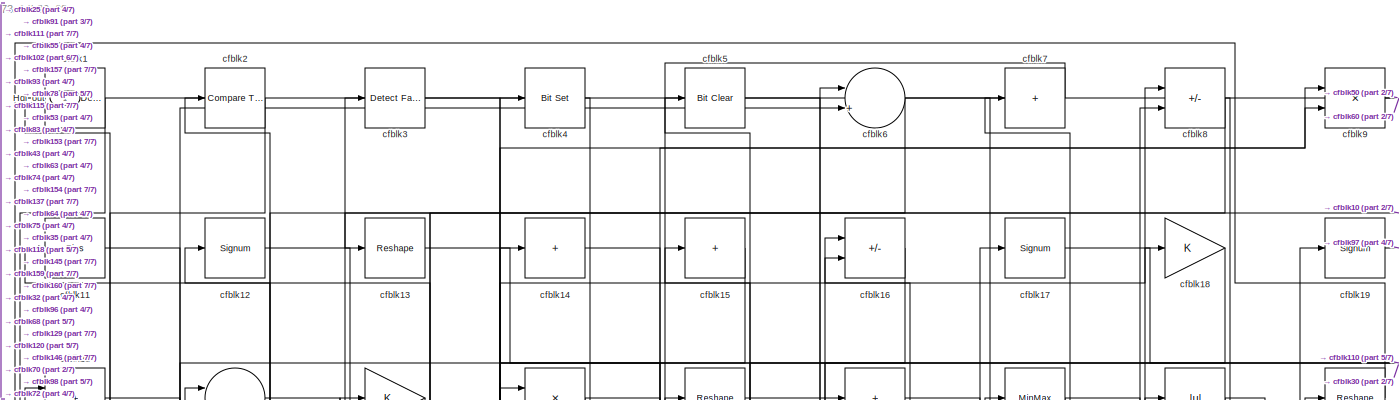
[diagram: root canvas - part 1/7, full width, top band]
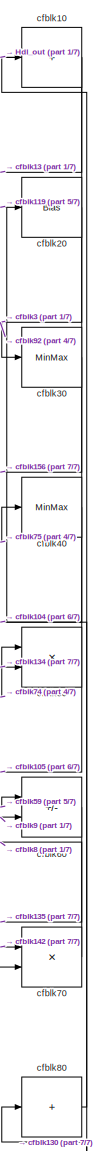
[diagram: root canvas - part 2/7, top right region]
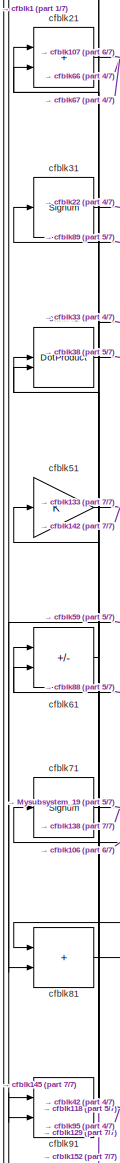
[diagram: root canvas - part 3/7, middle left region]
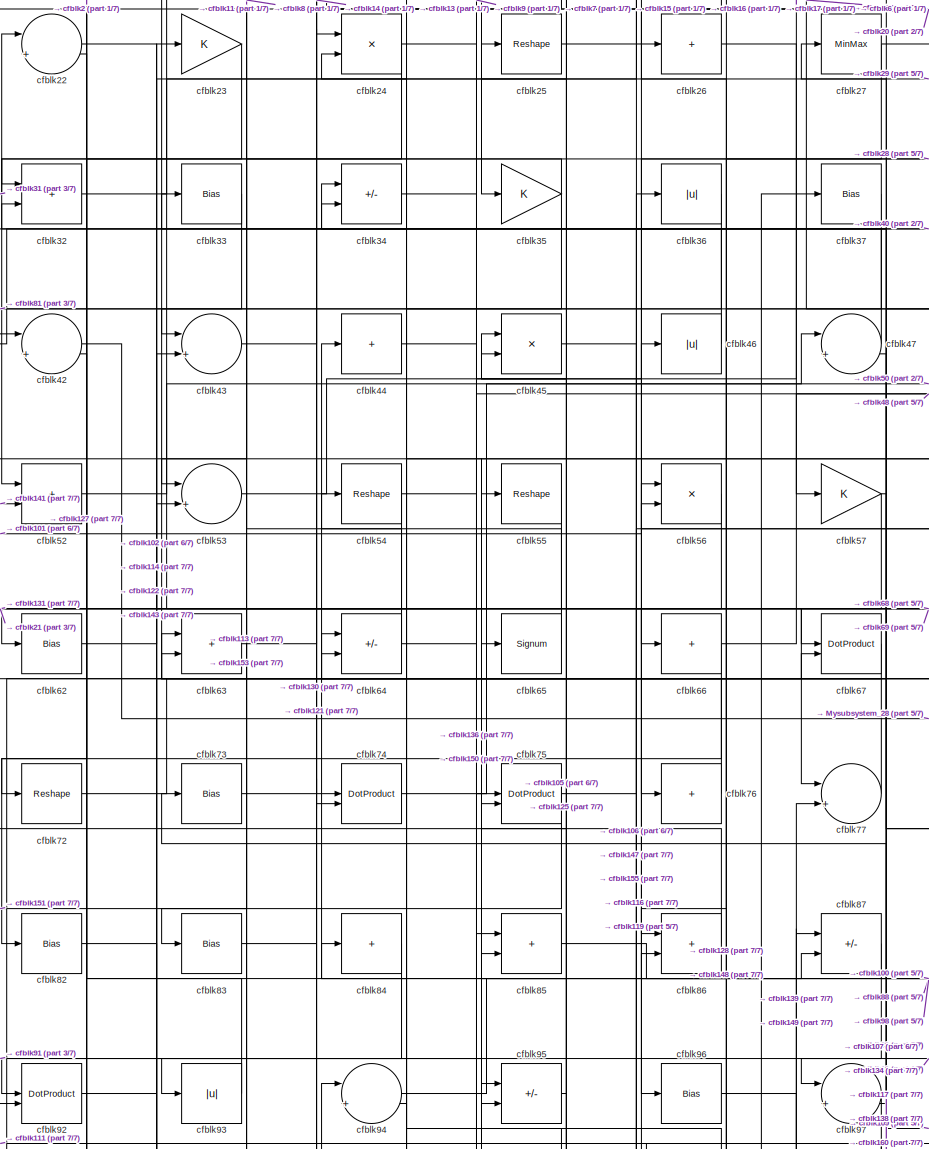
[diagram: root canvas - part 4/7, central region]
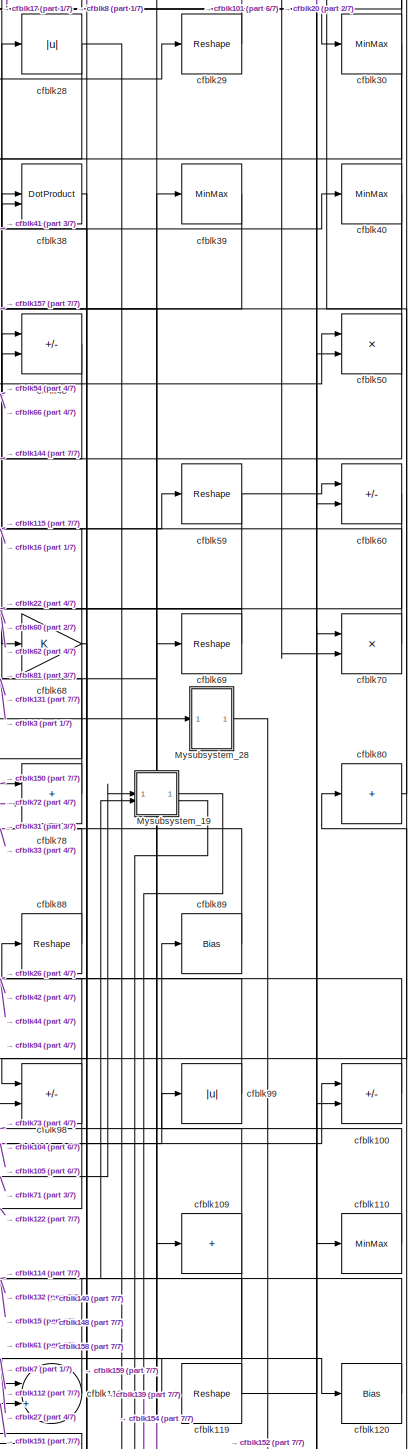
[diagram: root canvas - part 5/7, middle right region]
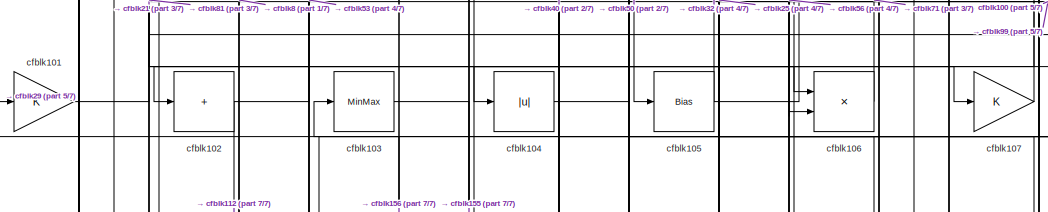
[diagram: root canvas - part 6/7, central region]
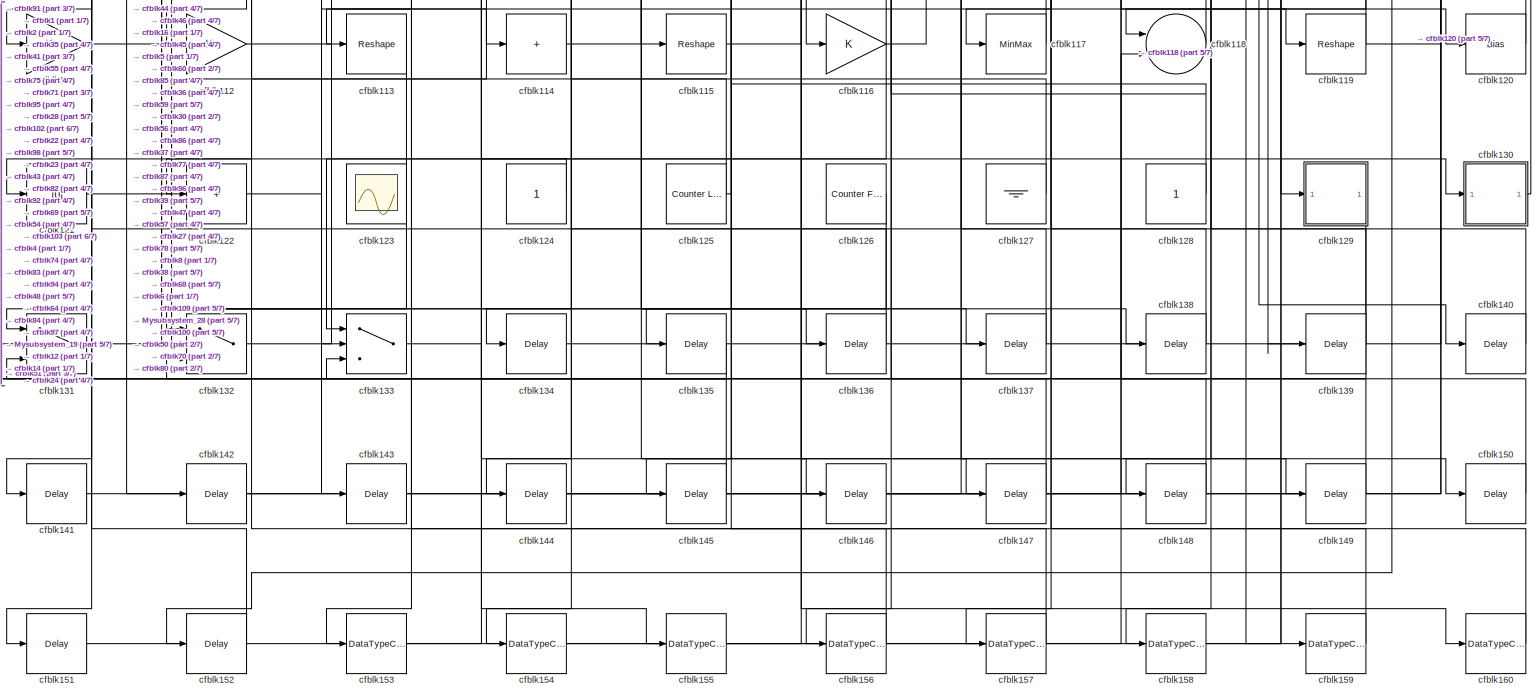
[diagram: root canvas - part 7/7, full width, bottom band]
MODEL slx_873a14b30a68
KIND model
CONFIG AbsTol = auto
CONFIG EnableMultiTasking = off
CONFIG FixedStep = auto
CONFIG MaxStep = auto
CONFIG MinStep = auto
CONFIG RelTol = 1e-3
CONFIG SampleTimeConstraint = Unconstrained
CONFIG SolverName = VariableStepAuto
CONFIG StartTime = 0.0
CONFIG StopTime = 10.0
BLOCK [Outport] Hdl_out
  OutDataTypeStr = uint8
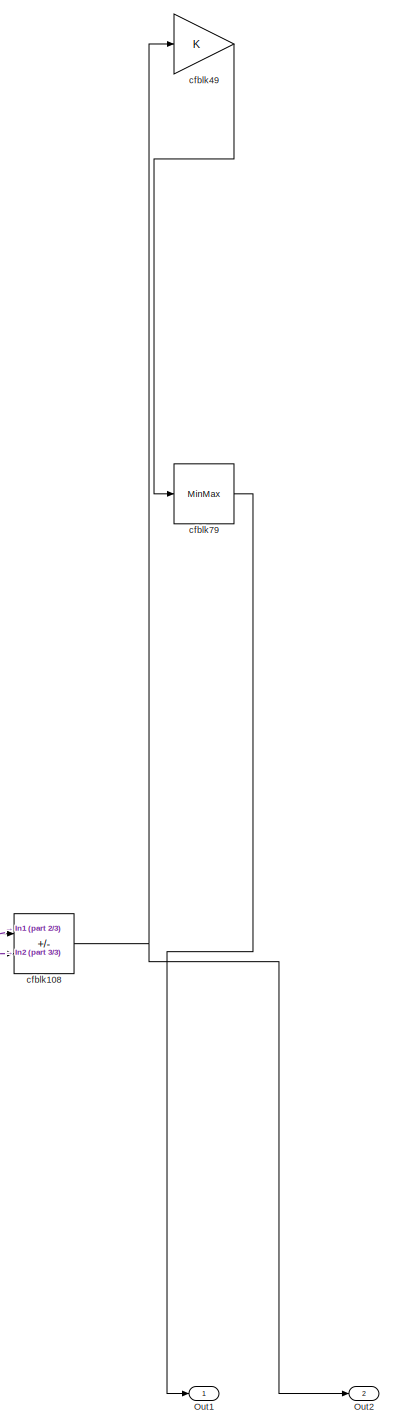
[diagram: Mysubsystem_19 - part 1/3, right side, full height]
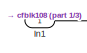
[diagram: Mysubsystem_19 - part 2/3, middle left region]
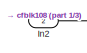
[diagram: Mysubsystem_19 - part 3/3, bottom center region]
BLOCK [SubSystem] Mysubsystem_19
  RTWFcnName = Mysubsystem_19
  RTWFcnNameOpts = User specified
  RTWFileNameOpts = Use function name
  RTWSystemCode = Reusable function
  TreatAsAtomicUnit = on
BLOCK [Inport] Mysubsystem_19/In1
BLOCK [Inport] Mysubsystem_19/In2
  Port = 2
BLOCK [Outport] Mysubsystem_19/Out1
BLOCK [Outport] Mysubsystem_19/Out2
  Port = 2
BLOCK [Sum] Mysubsystem_19/cfblk108
  IconShape = rectangular
  Inputs = +-
BLOCK [Gain] Mysubsystem_19/cfblk49
BLOCK [MinMax] Mysubsystem_19/cfblk79
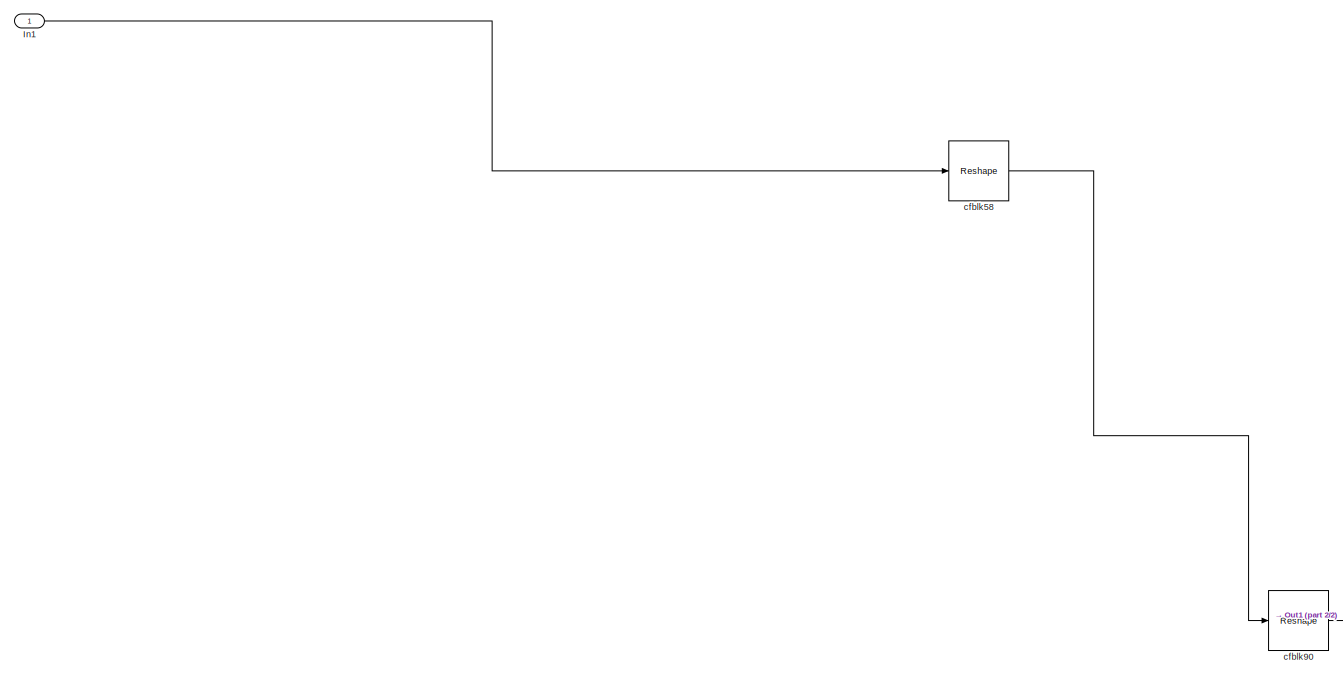
[diagram: Mysubsystem_28 - part 1/2, full width, top band]
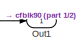
[diagram: Mysubsystem_28 - part 2/2, bottom left region]
BLOCK [SubSystem] Mysubsystem_28
  RTWFcnName = Mysubsystem_28
  RTWFcnNameOpts = User specified
  RTWFileNameOpts = Use function name
  RTWSystemCode = Reusable function
  TreatAsAtomicUnit = on
BLOCK [Inport] Mysubsystem_28/In1
BLOCK [Outport] Mysubsystem_28/Out1
BLOCK [Reshape] Mysubsystem_28/cfblk58
BLOCK [Reshape] Mysubsystem_28/cfblk90
BLOCK [Reference] cfblk1  REF=simulink/Logic and Bit
Operations/Detect
Decrease
  LibrarySourceBlock = hdlsllib/Logic and Bit\nOperations/Detect\nDecrease
  SourceBlock = simulink/Logic and Bit\nOperations/Detect\nDecrease
  SourceType = Detect Decrease
BLOCK [Sum] cfblk10
  IconShape = rectangular
  Inputs = +
  OutDataTypeStr = uint8
BLOCK [Sum] cfblk100
  IconShape = rectangular
  Inputs = +-
  OutDataTypeStr = uint8
BLOCK [Gain] cfblk101
  OutDataTypeStr = uint8
BLOCK [Sum] cfblk102
  IconShape = rectangular
  Inputs = +
  OutDataTypeStr = uint8
BLOCK [MinMax] cfblk103
  OutDataTypeStr = uint8
BLOCK [Abs] cfblk104
  OutDataTypeStr = uint8
  SaturateOnIntegerOverflow = off
BLOCK [Bias] cfblk105
  Bias = 0.0
  SaturateOnIntegerOverflow = off
BLOCK [Product] cfblk106
  Inputs = */
  OutDataTypeStr = uint8
  RndMeth = Zero
  SaturateOnIntegerOverflow = on
BLOCK [Gain] cfblk107
  OutDataTypeStr = uint8
BLOCK [Sum] cfblk109
  IconShape = rectangular
  Inputs = +
  OutDataTypeStr = uint8
BLOCK [Bias] cfblk11
  Bias = 0.0
  SaturateOnIntegerOverflow = off
BLOCK [MinMax] cfblk110
  OutDataTypeStr = uint8
BLOCK [Gain] cfblk111
  OutDataTypeStr = uint8
BLOCK [Gain] cfblk112
  OutDataTypeStr = uint8
BLOCK [Reshape] cfblk113
BLOCK [Sum] cfblk114
  IconShape = rectangular
  Inputs = +
  OutDataTypeStr = uint8
BLOCK [Reshape] cfblk115
BLOCK [Gain] cfblk116
  OutDataTypeStr = uint8
BLOCK [MinMax] cfblk117
  OutDataTypeStr = uint8
BLOCK [Sum] cfblk118
  Inputs = |++
  OutDataTypeStr = uint8
BLOCK [Reshape] cfblk119
BLOCK [Signum] cfblk12
BLOCK [Bias] cfblk120
  Bias = 0.0
  SaturateOnIntegerOverflow = off
BLOCK [Abs] cfblk121
  OutDataTypeStr = uint8
  SaturateOnIntegerOverflow = off
BLOCK [Sum] cfblk122
  IconShape = rectangular
  Inputs = +
  OutDataTypeStr = uint8
BLOCK [Scope] cfblk123
  Floating = on
  NumInputPorts = 1
  ScopeSpecificationString = Simulink.scopes.TimeScopeBlockCfg('CurrentConfiguration', extmgr.ConfigurationSet(extmgr.Configuration('Core','General UI',true,'FigureColor',[0.156862745098039 0.156862745098039 0.156862745098039]),extmgr.Configuration('Core','Source UI',true),extmgr.Configuration('Sources','WiredSimulink',true,'DataLoggingVariableName','ScopeData1','DataLoggingSaveFormat','StructureWithTime','DataLoggingLimitDat...<+2713ch>
BLOCK [Constant] cfblk124
  OutDataTypeStr = uint8
  SampleTime = -1
BLOCK [Reference] cfblk125  REF=hdlsllib/Sources/Counter
Limited
  SourceBlock = hdlsllib/Sources/Counter\nLimited
  SourceType = Counter Limited
BLOCK [Reference] cfblk126  REF=hdlsllib/Sources/Counter
Free-Running
  SourceBlock = hdlsllib/Sources/Counter\nFree-Running
  SourceType = Counter Free-Running
BLOCK [Ground] cfblk127
BLOCK [Constant] cfblk128
  OutDataTypeStr = uint8
  SampleTime = -1
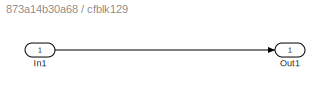
BLOCK [SubSystem] cfblk129
  LibrarySourceBlock = hdlsllib/Ports &\nSubsystems/Subsystem
BLOCK [Inport] cfblk129/In1
BLOCK [Outport] cfblk129/Out1
BLOCK [Reshape] cfblk13
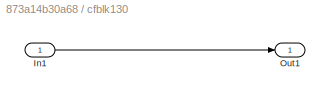
BLOCK [SubSystem] cfblk130
  LibrarySourceBlock = hdlsllib/Ports &\nSubsystems/Subsystem
BLOCK [Inport] cfblk130/In1
BLOCK [Outport] cfblk130/Out1
BLOCK [Switch] cfblk131
  InputSameDT = off
  OutDataTypeStr = uint8
  SaturateOnIntegerOverflow = off
BLOCK [Switch] cfblk132
  InputSameDT = off
  OutDataTypeStr = uint8
  SaturateOnIntegerOverflow = off
BLOCK [Switch] cfblk133
  InputSameDT = off
  OutDataTypeStr = uint8
  SaturateOnIntegerOverflow = off
BLOCK [Delay] cfblk134
  InputPortMap = u0
  SampleTime = 1
BLOCK [Delay] cfblk135
  InputPortMap = u0
  SampleTime = 1
BLOCK [Delay] cfblk136
  InputPortMap = u0
  SampleTime = 1
BLOCK [Delay] cfblk137
  InputPortMap = u0
  SampleTime = 1
BLOCK [Delay] cfblk138
  InputPortMap = u0
  SampleTime = 1
BLOCK [Delay] cfblk139
  InputPortMap = u0
  SampleTime = 1
BLOCK [Sum] cfblk14
  IconShape = rectangular
  Inputs = +
  OutDataTypeStr = uint8
BLOCK [Delay] cfblk140
  InputPortMap = u0
  SampleTime = 1
BLOCK [Delay] cfblk141
  InputPortMap = u0
  SampleTime = 1
BLOCK [Delay] cfblk142
  InputPortMap = u0
  SampleTime = 1
BLOCK [Delay] cfblk143
  InputPortMap = u0
  SampleTime = 1
BLOCK [Delay] cfblk144
  InputPortMap = u0
  SampleTime = 1
BLOCK [Delay] cfblk145
  InputPortMap = u0
  SampleTime = 1
BLOCK [Delay] cfblk146
  InputPortMap = u0
  SampleTime = 1
BLOCK [Delay] cfblk147
  InputPortMap = u0
  SampleTime = 1
BLOCK [Delay] cfblk148
  InputPortMap = u0
  SampleTime = 1
BLOCK [Delay] cfblk149
  InputPortMap = u0
  SampleTime = 1
BLOCK [Sum] cfblk15
  IconShape = rectangular
  Inputs = +
  OutDataTypeStr = uint8
BLOCK [Delay] cfblk150
  InputPortMap = u0
  SampleTime = 1
BLOCK [Delay] cfblk151
  InputPortMap = u0
  SampleTime = 1
BLOCK [Delay] cfblk152
  InputPortMap = u0
  SampleTime = 1
BLOCK [DataTypeConversion] cfblk153
  OutDataTypeStr = uint8
  RndMeth = Floor
  SaturateOnIntegerOverflow = off
BLOCK [DataTypeConversion] cfblk154
  OutDataTypeStr = uint8
  RndMeth = Floor
  SaturateOnIntegerOverflow = off
BLOCK [DataTypeConversion] cfblk155
  OutDataTypeStr = uint8
  RndMeth = Floor
  SaturateOnIntegerOverflow = off
BLOCK [DataTypeConversion] cfblk156
  OutDataTypeStr = uint8
  RndMeth = Floor
  SaturateOnIntegerOverflow = off
BLOCK [DataTypeConversion] cfblk157
  OutDataTypeStr = uint8
  RndMeth = Floor
  SaturateOnIntegerOverflow = off
BLOCK [DataTypeConversion] cfblk158
  OutDataTypeStr = uint8
  RndMeth = Floor
  SaturateOnIntegerOverflow = off
BLOCK [DataTypeConversion] cfblk159
  OutDataTypeStr = uint8
  RndMeth = Floor
  SaturateOnIntegerOverflow = off
BLOCK [Sum] cfblk16
  IconShape = rectangular
  Inputs = +-
  OutDataTypeStr = uint8
BLOCK [DataTypeConversion] cfblk160
  OutDataTypeStr = uint8
  RndMeth = Floor
  SaturateOnIntegerOverflow = off
BLOCK [Signum] cfblk17
BLOCK [Gain] cfblk18
  OutDataTypeStr = uint8
BLOCK [Signum] cfblk19
BLOCK [Reference] cfblk2  REF=hdlsllib/Logic and Bit
Operations/Compare
To Zero
  SourceBlock = hdlsllib/Logic and Bit\nOperations/Compare\nTo Zero
  SourceType = Compare To Zero
BLOCK [Bias] cfblk20
  Bias = 0.0
  SaturateOnIntegerOverflow = off
BLOCK [Sum] cfblk21
  IconShape = rectangular
  OutDataTypeStr = uint8
BLOCK [Sum] cfblk22
  Inputs = |++
  OutDataTypeStr = uint8
BLOCK [Gain] cfblk23
  OutDataTypeStr = uint8
BLOCK [Product] cfblk24
  Inputs = */
  OutDataTypeStr = uint8
  RndMeth = Zero
  SaturateOnIntegerOverflow = on
BLOCK [Reshape] cfblk25
BLOCK [Sum] cfblk26
  IconShape = rectangular
  Inputs = +
  OutDataTypeStr = uint8
BLOCK [MinMax] cfblk27
  OutDataTypeStr = uint8
BLOCK [Abs] cfblk28
  OutDataTypeStr = uint8
  SaturateOnIntegerOverflow = off
BLOCK [Reshape] cfblk29
BLOCK [Reference] cfblk3  REF=hdlsllib/Logic and Bit
Operations/Detect Fall
Negative
  SourceBlock = hdlsllib/Logic and Bit\nOperations/Detect Fall\nNegative
  SourceType = Detect Fall Negative
BLOCK [MinMax] cfblk30
  OutDataTypeStr = uint8
BLOCK [Signum] cfblk31
BLOCK [Sum] cfblk32
  IconShape = rectangular
  OutDataTypeStr = uint8
BLOCK [Bias] cfblk33
  Bias = 0.0
  SaturateOnIntegerOverflow = off
BLOCK [Sum] cfblk34
  IconShape = rectangular
  Inputs = +-
  OutDataTypeStr = uint8
BLOCK [Gain] cfblk35
  OutDataTypeStr = uint8
BLOCK [Abs] cfblk36
  OutDataTypeStr = uint8
  SaturateOnIntegerOverflow = off
BLOCK [Bias] cfblk37
  Bias = 0.0
  SaturateOnIntegerOverflow = off
BLOCK [DotProduct] cfblk38
  OutDataTypeStr = uint8
BLOCK [MinMax] cfblk39
  OutDataTypeStr = uint8
BLOCK [Reference] cfblk4  REF=simulink/Logic and Bit
Operations/Bit Set
  LibrarySourceBlock = hdlsllib/Logic and Bit\nOperations/Bit Set
  SourceBlock = simulink/Logic and Bit\nOperations/Bit Set
  SourceType = Bit Set
BLOCK [MinMax] cfblk40
  OutDataTypeStr = uint8
BLOCK [DotProduct] cfblk41
  OutDataTypeStr = uint8
BLOCK [Sum] cfblk42
  Inputs = |++
  OutDataTypeStr = uint8
BLOCK [Sum] cfblk43
  Inputs = |++
  OutDataTypeStr = uint8
BLOCK [Sum] cfblk44
  IconShape = rectangular
  Inputs = +
  OutDataTypeStr = uint8
BLOCK [Product] cfblk45
  Inputs = */
  OutDataTypeStr = uint8
  RndMeth = Zero
  SaturateOnIntegerOverflow = on
BLOCK [Abs] cfblk46
  OutDataTypeStr = uint8
  SaturateOnIntegerOverflow = off
BLOCK [Sum] cfblk47
  Inputs = |++
  OutDataTypeStr = uint8
BLOCK [Sum] cfblk48
  IconShape = rectangular
  Inputs = +-
  OutDataTypeStr = uint8
BLOCK [Reference] cfblk5  REF=simulink/Logic and Bit
Operations/Bit Clear
  LibrarySourceBlock = hdlsllib/Logic and Bit\nOperations/Bit Clear
  SourceBlock = simulink/Logic and Bit\nOperations/Bit Clear
  SourceType = Bit Clear
BLOCK [Product] cfblk50
  Inputs = */
  OutDataTypeStr = uint8
  RndMeth = Zero
  SaturateOnIntegerOverflow = on
BLOCK [Gain] cfblk51
  OutDataTypeStr = uint8
BLOCK [Sum] cfblk52
  IconShape = rectangular
  OutDataTypeStr = uint8
BLOCK [Sum] cfblk53
  Inputs = |++
  OutDataTypeStr = uint8
BLOCK [Reshape] cfblk54
BLOCK [Reshape] cfblk55
BLOCK [Product] cfblk56
  Inputs = */
  OutDataTypeStr = uint8
  RndMeth = Zero
  SaturateOnIntegerOverflow = on
BLOCK [Gain] cfblk57
  OutDataTypeStr = uint8
BLOCK [Reshape] cfblk59
BLOCK [Sum] cfblk6
  Inputs = |++
  OutDataTypeStr = uint8
BLOCK [Sum] cfblk60
  IconShape = rectangular
  Inputs = +-
  OutDataTypeStr = uint8
BLOCK [Sum] cfblk61
  IconShape = rectangular
  Inputs = +-
  OutDataTypeStr = uint8
BLOCK [Bias] cfblk62
  Bias = 0.0
  SaturateOnIntegerOverflow = off
BLOCK [Sum] cfblk63
  IconShape = rectangular
  OutDataTypeStr = uint8
BLOCK [Sum] cfblk64
  IconShape = rectangular
  Inputs = +-
  OutDataTypeStr = uint8
BLOCK [Signum] cfblk65
BLOCK [Sum] cfblk66
  IconShape = rectangular
  Inputs = +
  OutDataTypeStr = uint8
BLOCK [DotProduct] cfblk67
  OutDataTypeStr = uint8
BLOCK [Gain] cfblk68
  OutDataTypeStr = uint8
BLOCK [Reshape] cfblk69
BLOCK [Sum] cfblk7
  IconShape = rectangular
  Inputs = +
  OutDataTypeStr = uint8
BLOCK [Product] cfblk70
  Inputs = */
  OutDataTypeStr = uint8
  RndMeth = Zero
  SaturateOnIntegerOverflow = on
BLOCK [Signum] cfblk71
BLOCK [Reshape] cfblk72
BLOCK [Bias] cfblk73
  Bias = 0.0
  SaturateOnIntegerOverflow = off
BLOCK [DotProduct] cfblk74
  OutDataTypeStr = uint8
BLOCK [DotProduct] cfblk75
  OutDataTypeStr = uint8
BLOCK [Sum] cfblk76
  IconShape = rectangular
  Inputs = +
  OutDataTypeStr = uint8
BLOCK [Sum] cfblk77
  Inputs = |++
  OutDataTypeStr = uint8
BLOCK [Sum] cfblk78
  IconShape = rectangular
  OutDataTypeStr = uint8
BLOCK [Sum] cfblk8
  IconShape = rectangular
  Inputs = +-
  OutDataTypeStr = uint8
BLOCK [Sum] cfblk80
  IconShape = rectangular
  Inputs = +
  OutDataTypeStr = uint8
BLOCK [Sum] cfblk81
  IconShape = rectangular
  OutDataTypeStr = uint8
BLOCK [Bias] cfblk82
  Bias = 0.0
  SaturateOnIntegerOverflow = off
BLOCK [Bias] cfblk83
  Bias = 0.0
  SaturateOnIntegerOverflow = off
BLOCK [Sum] cfblk84
  IconShape = rectangular
  Inputs = +
  OutDataTypeStr = uint8
BLOCK [Sum] cfblk85
  IconShape = rectangular
  OutDataTypeStr = uint8
BLOCK [Sum] cfblk86
  IconShape = rectangular
  OutDataTypeStr = uint8
BLOCK [Sum] cfblk87
  IconShape = rectangular
  Inputs = +-
  OutDataTypeStr = uint8
BLOCK [Reshape] cfblk88
BLOCK [Bias] cfblk89
  Bias = 0.0
  SaturateOnIntegerOverflow = off
BLOCK [Product] cfblk9
  Inputs = */
  OutDataTypeStr = uint8
  RndMeth = Zero
  SaturateOnIntegerOverflow = on
BLOCK [Sum] cfblk91
  IconShape = rectangular
  OutDataTypeStr = uint8
BLOCK [DotProduct] cfblk92
  OutDataTypeStr = uint8
BLOCK [Abs] cfblk93
  OutDataTypeStr = uint8
  SaturateOnIntegerOverflow = off
BLOCK [Sum] cfblk94
  Inputs = |++
  OutDataTypeStr = uint8
BLOCK [Sum] cfblk95
  IconShape = rectangular
  Inputs = +-
  OutDataTypeStr = uint8
BLOCK [Bias] cfblk96
  Bias = 0.0
  SaturateOnIntegerOverflow = off
BLOCK [Sum] cfblk97
  Inputs = |++
  OutDataTypeStr = uint8
BLOCK [Sum] cfblk98
  IconShape = rectangular
  Inputs = +-
  OutDataTypeStr = uint8
BLOCK [Abs] cfblk99
  OutDataTypeStr = uint8
  SaturateOnIntegerOverflow = off
LINE Mysubsystem_19/In1:1 -> Mysubsystem_19/cfblk108:1
LINE Mysubsystem_19/In2:1 -> Mysubsystem_19/cfblk108:2
NET Mysubsystem_19/cfblk108:1 -> Mysubsystem_19/Out2:1, Mysubsystem_19/cfblk49:1
LINE Mysubsystem_19/cfblk49:1 -> Mysubsystem_19/cfblk79:1
LINE Mysubsystem_19/cfblk79:1 -> Mysubsystem_19/Out1:1
LINE Mysubsystem_19:1 -> cfblk139:1
LINE Mysubsystem_19:2 -> cfblk140:1
LINE Mysubsystem_28/In1:1 -> Mysubsystem_28/cfblk58:1
LINE Mysubsystem_28/cfblk58:1 -> Mysubsystem_28/cfblk90:1
LINE Mysubsystem_28/cfblk90:1 -> Mysubsystem_28/Out1:1
LINE Mysubsystem_28:1 -> cfblk152:1
NET cfblk100:1 -> cfblk26:1, cfblk42:2
LINE cfblk101:1 -> cfblk56:1
NET cfblk102:1 -> cfblk112:1, cfblk53:2
LINE cfblk103:1 -> cfblk155:1
LINE cfblk104:1 -> cfblk99:1
NET cfblk105:1 -> cfblk100:1, cfblk32:2
LINE cfblk106:1 -> cfblk71:1
LINE cfblk107:1 -> cfblk25:1
NET cfblk109:1 -> cfblk148:1, cfblk73:1
LINE cfblk10:1 -> cfblk13:1
LINE cfblk110:1 -> cfblk89:1
NET cfblk111:1 -> cfblk6:2, cfblk95:2
LINE cfblk112:1 -> cfblk120:1
LINE cfblk113:1 -> cfblk132:2
NET cfblk114:1 -> Mysubsystem_19:2, cfblk46:1
LINE cfblk115:1 -> cfblk59:1
NET cfblk116:1 -> cfblk133:1, cfblk37:1, cfblk45:1
LINE cfblk117:1 -> cfblk75:2
NET cfblk118:1 -> cfblk15:1, cfblk61:2
NET cfblk119:1 -> cfblk20:1, cfblk94:2
LINE cfblk11:1 -> cfblk55:1
LINE cfblk120:1 -> cfblk7:1
LINE cfblk121:1 -> cfblk94:1
LINE cfblk122:1 -> cfblk23:1
LINE cfblk124:1 -> cfblk121:1
NET cfblk125:1 -> cfblk45:2, cfblk84:1
LINE cfblk126:1 -> cfblk132:1
LINE cfblk127:1 -> cfblk22:2
NET cfblk128:1 -> cfblk56:2, cfblk85:2
LINE cfblk129/In1:1 -> cfblk129/Out1:1
LINE cfblk129:1 -> cfblk51:1
LINE cfblk12:1 -> cfblk115:1
LINE cfblk130/In1:1 -> cfblk130/Out1:1
LINE cfblk130:1 -> cfblk80:1
LINE cfblk131:1 -> cfblk28:1
LINE cfblk132:1 -> cfblk69:1
LINE cfblk133:1 -> cfblk146:1
LINE cfblk134:1 -> cfblk50:2
LINE cfblk135:1 -> cfblk131:3
LINE cfblk136:1 -> cfblk64:2
LINE cfblk137:1 -> cfblk1:1
LINE cfblk138:1 -> cfblk47:2
LINE cfblk139:1 -> cfblk87:1
LINE cfblk13:1 -> cfblk75:1
LINE cfblk140:1 -> cfblk38:2
LINE cfblk141:1 -> cfblk43:2
LINE cfblk142:1 -> cfblk70:1
LINE cfblk143:1 -> cfblk77:2
LINE cfblk144:1 -> cfblk100:2
LINE cfblk145:1 -> cfblk91:1
LINE cfblk146:1 -> cfblk8:2
LINE cfblk147:1 -> cfblk74:1
LINE cfblk148:1 -> cfblk86:2
LINE cfblk149:1 -> cfblk131:2
LINE cfblk14:1 -> cfblk137:1
LINE cfblk150:1 -> cfblk78:1
LINE cfblk151:1 -> cfblk118:2
LINE cfblk152:1 -> cfblk41:2
LINE cfblk153:1 -> cfblk4:1
LINE cfblk154:1 -> cfblk109:1
LINE cfblk155:1 -> cfblk36:1
LINE cfblk156:1 -> cfblk103:1
NET cfblk157:1 -> cfblk12:1, cfblk132:3, cfblk133:3
LINE cfblk158:1 -> cfblk39:1
LINE cfblk159:1 -> cfblk5:1
LINE cfblk15:1 -> cfblk74:2
LINE cfblk160:1 -> cfblk97:2
LINE cfblk16:1 -> cfblk145:1
LINE cfblk17:1 -> cfblk110:1
LINE cfblk18:1 -> cfblk96:1
LINE cfblk19:1 -> cfblk97:1
LINE cfblk1:1 -> cfblk91:2
LINE cfblk20:1 -> cfblk92:2
NET cfblk21:1 -> cfblk107:1, cfblk66:1, cfblk67:1
LINE cfblk22:1 -> cfblk68:1
LINE cfblk23:1 -> cfblk52:1
NET cfblk24:1 -> cfblk113:1, cfblk136:1
LINE cfblk25:1 -> cfblk16:1
LINE cfblk26:1 -> cfblk57:1
NET cfblk27:1 -> cfblk116:1, cfblk119:1
NET cfblk28:1 -> cfblk159:1, cfblk72:1, cfblk78:2
LINE cfblk29:1 -> cfblk101:1
LINE cfblk2:1 -> cfblk111:1
LINE cfblk30:1 -> cfblk156:1
LINE cfblk31:1 -> cfblk22:1
LINE cfblk32:1 -> cfblk6:1
LINE cfblk33:1 -> cfblk81:1
LINE cfblk34:1 -> cfblk85:1
NET cfblk35:1 -> cfblk141:1, cfblk32:1, cfblk52:2
LINE cfblk36:1 -> cfblk43:1
LINE cfblk37:1 -> cfblk86:1
LINE cfblk38:1 -> cfblk118:1
LINE cfblk39:1 -> cfblk157:1
LINE cfblk3:1 -> cfblk30:1
LINE cfblk40:1 -> cfblk104:1
LINE cfblk41:1 -> cfblk38:1
LINE cfblk42:1 -> Mysubsystem_28:1
LINE cfblk43:1 -> cfblk9:1
LINE cfblk44:1 -> cfblk150:1
LINE cfblk45:1 -> cfblk147:1
LINE cfblk46:1 -> cfblk24:2
LINE cfblk47:1 -> cfblk34:2
LINE cfblk48:1 -> cfblk144:1
LINE cfblk4:1 -> cfblk154:1
NET cfblk50:1 -> Hdl_out:1, cfblk105:1
NET cfblk51:1 -> cfblk133:2, cfblk142:1, cfblk21:2
LINE cfblk52:1 -> cfblk47:1
LINE cfblk53:1 -> cfblk17:1
NET cfblk54:1 -> cfblk153:1, cfblk48:1
LINE cfblk55:1 -> cfblk131:1
NET cfblk56:1 -> cfblk106:2, cfblk76:1
NET cfblk57:1 -> cfblk117:1, cfblk77:1
NET cfblk59:1 -> cfblk60:1, cfblk81:2
LINE cfblk5:1 -> cfblk160:1
LINE cfblk60:1 -> cfblk135:1
LINE cfblk61:1 -> cfblk21:1
LINE cfblk62:1 -> cfblk29:1
LINE cfblk63:1 -> cfblk14:1
NET cfblk64:1 -> cfblk11:1, cfblk9:2
LINE cfblk65:1 -> cfblk34:1
NET cfblk66:1 -> cfblk48:2, cfblk82:1
LINE cfblk67:1 -> cfblk63:2
NET cfblk68:1 -> cfblk158:1, cfblk16:2, cfblk98:2
LINE cfblk69:1 -> cfblk62:1
NET cfblk6:1 -> cfblk129:1, cfblk53:1
LINE cfblk70:1 -> cfblk8:1
NET cfblk71:1 -> Mysubsystem_19:1, cfblk138:1
LINE cfblk72:1 -> cfblk19:1
LINE cfblk73:1 -> cfblk24:1
LINE cfblk74:1 -> cfblk50:1
NET cfblk75:1 -> cfblk151:1, cfblk40:1
LINE cfblk76:1 -> cfblk63:1
LINE cfblk77:1 -> cfblk64:1
LINE cfblk78:1 -> cfblk3:1
LINE cfblk7:1 -> cfblk35:1
LINE cfblk80:1 -> cfblk10:1
LINE cfblk81:1 -> cfblk106:1
LINE cfblk82:1 -> cfblk143:1
NET cfblk83:1 -> cfblk130:1, cfblk18:1
LINE cfblk84:1 -> cfblk93:1
LINE cfblk85:1 -> cfblk87:2
LINE cfblk86:1 -> cfblk54:1
LINE cfblk87:1 -> cfblk92:1
NET cfblk88:1 -> cfblk33:1, cfblk61:1
LINE cfblk89:1 -> cfblk31:1
NET cfblk8:1 -> cfblk102:1, cfblk83:1, cfblk98:1
NET cfblk91:1 -> cfblk41:1, cfblk42:1, cfblk95:1
NET cfblk92:1 -> cfblk114:1, cfblk67:2
LINE cfblk93:1 -> cfblk2:1
LINE cfblk94:1 -> cfblk88:1
LINE cfblk95:1 -> cfblk65:1
LINE cfblk96:1 -> cfblk149:1
LINE cfblk97:1 -> cfblk134:1
NET cfblk98:1 -> cfblk122:1, cfblk27:1
LINE cfblk99:1 -> cfblk44:1
NET cfblk9:1 -> cfblk60:2, cfblk70:2
note: NET lines group one-source signal fan-out (src -> all destinations, sorted); 1:1 wires keep LINE
